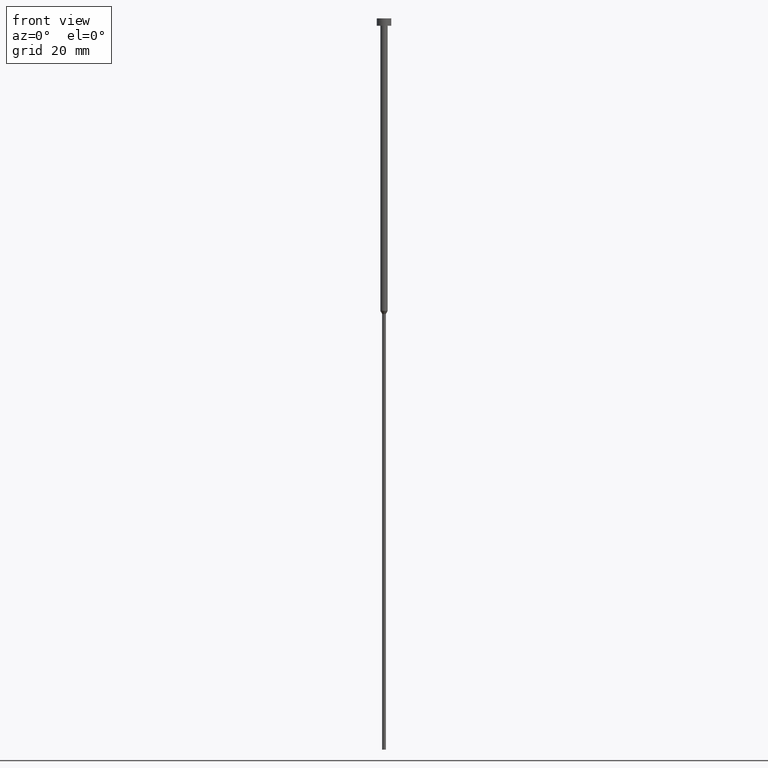
[diagram: clean part render]
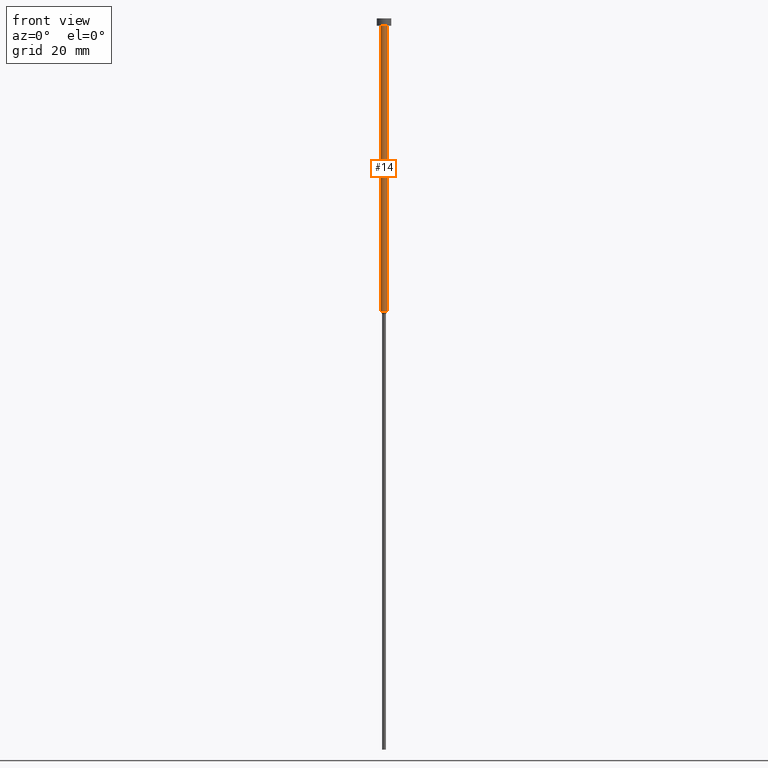
[diagram: same view with one face highlighted and labeled with its STEP entity id]
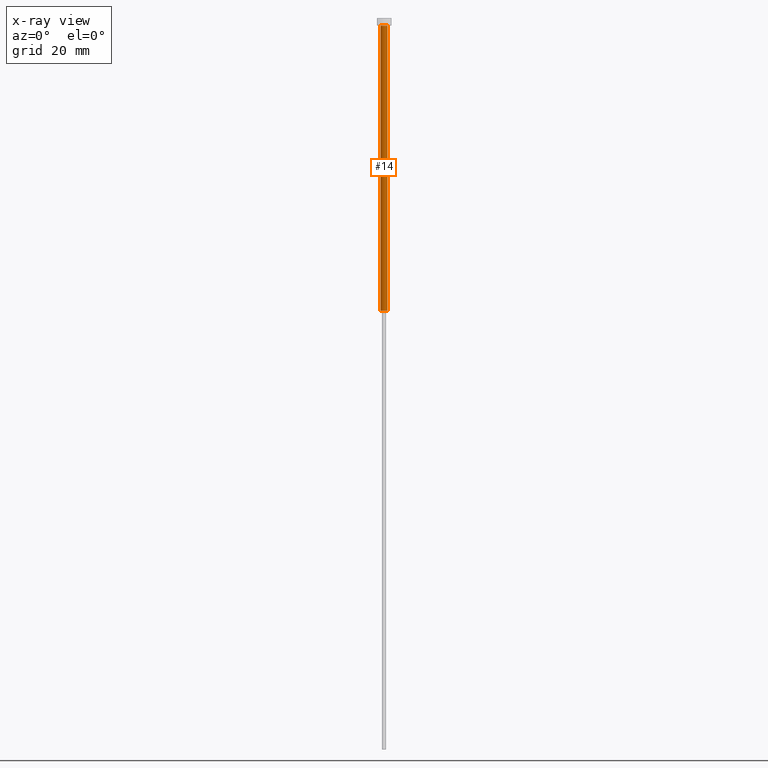
[diagram: x-ray of the same camera — body ghosted, the highlighted face saturated]
A machine part, front view. The second image highlights one B-rep face of the part: STEP entity #14.
The next image is the same camera in x-ray: the body ghosted, the highlighted face saturated — about 0% of this face is hidden behind the body in this view.
In plain terms, the highlighted cylindrical surface (edge-blend (fillet) strip) has radius 1 mm, axis along (-0, -0, 1).
Its self-contained STEP definition (entity closure, byte-faithful):
#14 = ADVANCED_FACE ( 'NONE', ( #181 ), #209, .T. ) ;
#16 = CARTESIAN_POINT ( 'NONE',  ( 0.000000000000000000, 0.000000000000000000, 0.000000000000000000 ) ) ;
#17 = DIRECTION ( 'NONE',  ( -0.000000000000000000, -0.000000000000000000, 1.000000000000000000 ) ) ;
#18 = DIRECTION ( 'NONE',  ( 1.000000000000000000, 0.000000000000000000, 0.000000000000000000 ) ) ;
#22 = CARTESIAN_POINT ( 'NONE',  ( -1.000000000000003553, 1.224646799147357398E-16, -2.000000000000000444 ) ) ;
#27 = CIRCLE ( 'NONE', #244, 1.000000000000003553 ) ;
#43 = CIRCLE ( 'NONE', #52, 1.000000000000003109 ) ;
#44 = ORIENTED_EDGE ( 'NONE', *, *, #150, .F. ) ;
#45 = CARTESIAN_POINT ( 'NONE',  ( 1.000000000000003109, 0.000000000000000000, -80.00000000000000000 ) ) ;
#46 = CARTESIAN_POINT ( 'NONE',  ( 1.000000000000003331, 0.000000000000000000, 0.000000000000000000 ) ) ;
#52 = AXIS2_PLACEMENT_3D ( 'NONE', #76, #328, #81 ) ;
#62 = DIRECTION ( 'NONE',  ( 1.000000000000000000, 0.000000000000000000, 0.000000000000000000 ) ) ;
#76 = CARTESIAN_POINT ( 'NONE',  ( 0.000000000000000000, 0.000000000000000000, -80.00000000000000000 ) ) ;
#81 = DIRECTION ( 'NONE',  ( 1.000000000000000000, 0.000000000000000000, 0.000000000000000000 ) ) ;
#82 = ORIENTED_EDGE ( 'NONE', *, *, #87, .T. ) ;
#87 = EDGE_CURVE ( 'NONE', #145, #338, #316, .T. ) ;
#93 = DIRECTION ( 'NONE',  ( -0.000000000000000000, -0.000000000000000000, 1.000000000000000000 ) ) ;
#99 = VECTOR ( 'NONE', #93, 1000.000000000000000 ) ;
#109 = EDGE_LOOP ( 'NONE', ( #44, #228, #82, #139 ) ) ;
#114 = CARTESIAN_POINT ( 'NONE',  ( -1.000000000000003109, 1.224646799147356905E-16, -80.00000000000000000 ) ) ;
#138 = CARTESIAN_POINT ( 'NONE',  ( 0.000000000000000000, 0.000000000000000000, -2.000000000000000444 ) ) ;
#139 = ORIENTED_EDGE ( 'NONE', *, *, #330, .F. ) ;
#145 = VERTEX_POINT ( 'NONE', #45 ) ;
#150 = EDGE_CURVE ( 'NONE', #274, #175, #270, .T. ) ;
#153 = EDGE_CURVE ( 'NONE', #274, #145, #43, .T. ) ;
#175 = VERTEX_POINT ( 'NONE', #22 ) ;
#181 = FACE_OUTER_BOUND ( 'NONE', #109, .T. ) ;
#209 = CYLINDRICAL_SURFACE ( 'NONE', #286, 1.000000000000003331 ) ;
#218 = CARTESIAN_POINT ( 'NONE',  ( -1.000000000000003331, 1.224646799147357151E-16, 0.000000000000000000 ) ) ;
#228 = ORIENTED_EDGE ( 'NONE', *, *, #153, .T. ) ;
#233 = CARTESIAN_POINT ( 'NONE',  ( 1.000000000000003553, 0.000000000000000000, -2.000000000000000444 ) ) ;
#244 = AXIS2_PLACEMENT_3D ( 'NONE', #138, #308, #62 ) ;
#270 = LINE ( 'NONE', #218, #289 ) ;
#274 = VERTEX_POINT ( 'NONE', #114 ) ;
#286 = AXIS2_PLACEMENT_3D ( 'NONE', #16, #17, #18 ) ;
#289 = VECTOR ( 'NONE', #327, 1000.000000000000000 ) ;
#308 = DIRECTION ( 'NONE',  ( -0.000000000000000000, -0.000000000000000000, 1.000000000000000000 ) ) ;
#316 = LINE ( 'NONE', #46, #99 ) ;
#327 = DIRECTION ( 'NONE',  ( -0.000000000000000000, -0.000000000000000000, 1.000000000000000000 ) ) ;
#328 = DIRECTION ( 'NONE',  ( -0.000000000000000000, -0.000000000000000000, 1.000000000000000000 ) ) ;
#330 = EDGE_CURVE ( 'NONE', #175, #338, #27, .T. ) ;
#338 = VERTEX_POINT ( 'NONE', #233 ) ;